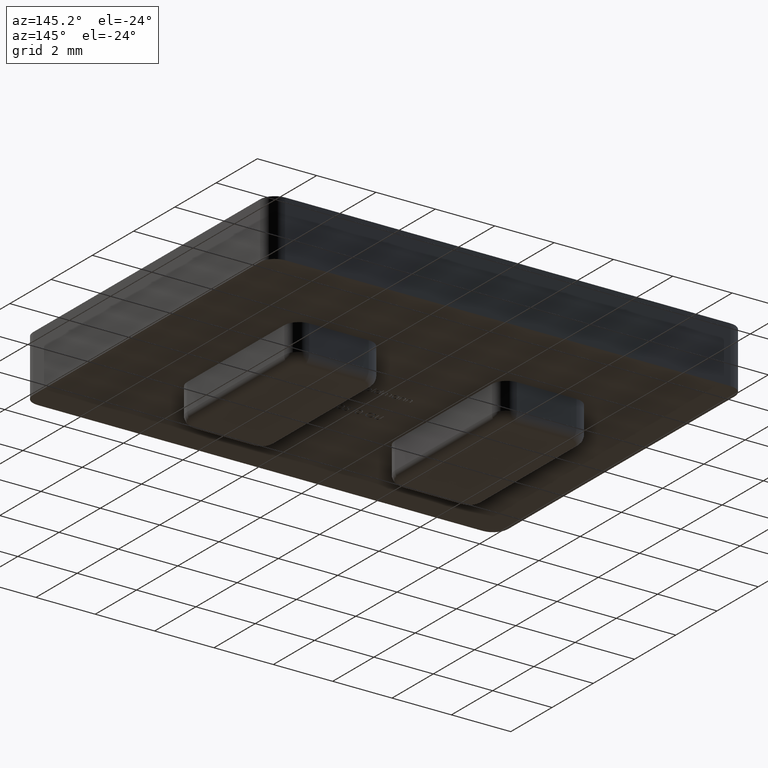
[diagram: clean part render]
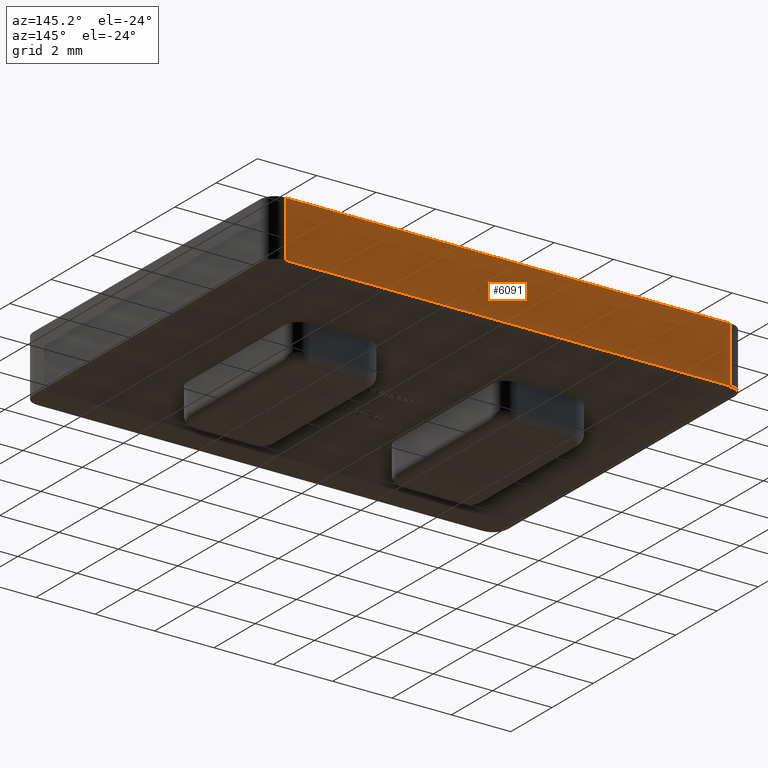
[diagram: same view with one face highlighted and labeled with its STEP entity id]
A machine part, auxiliary view. The second image highlights one B-rep face of the part: STEP entity #6091.
In plain terms, the highlighted planar face has unit normal (0, -1, 0).
Its self-contained STEP definition (entity closure, byte-faithful):
#550 = DIRECTION ( 'NONE',  ( 0.0000000000000000000, -0.0000000000000000000, -1.000000000000000000 ) ) ;
#810 = EDGE_CURVE ( 'NONE', #1571, #3043, #2233, .T. ) ;
#1466 = CARTESIAN_POINT ( 'NONE',  ( -7.999999999999998200, 6.000000000000000000, 1.899999999999999900 ) ) ;
#1571 = VERTEX_POINT ( 'NONE', #9528 ) ;
#1662 = DIRECTION ( 'NONE',  ( 0.0000000000000000000, -1.000000000000000000, 0.0000000000000000000 ) ) ;
#1802 = CARTESIAN_POINT ( 'NONE',  ( -7.499999999999999100, 6.000000000000000000, 0.0000000000000000000 ) ) ;
#2233 = LINE ( 'NONE', #9423, #3239 ) ;
#3043 = VERTEX_POINT ( 'NONE', #8575 ) ;
#3239 = VECTOR ( 'NONE', #10489, 1000.000000000000000 ) ;
#3357 = LINE ( 'NONE', #12598, #7215 ) ;
#4043 = FACE_OUTER_BOUND ( 'NONE', #8819, .T. ) ;
#4849 = PLANE ( 'NONE',  #8089 ) ;
#5115 = EDGE_CURVE ( 'NONE', #3043, #12923, #12681, .T. ) ;
#5861 = DIRECTION ( 'NONE',  ( -1.000000000000000000, -0.0000000000000000000, -0.0000000000000000000 ) ) ;
#6091 = ADVANCED_FACE ( 'NONE', ( #4043 ), #4849, .F. ) ;
#6316 = ORIENTED_EDGE ( 'NONE', *, *, #810, .T. ) ;
#7140 = CARTESIAN_POINT ( 'NONE',  ( -7.999999999999998200, 6.000000000000000000, 1.899999999999999900 ) ) ;
#7215 = VECTOR ( 'NONE', #11603, 1000.000000000000000 ) ;
#7604 = DIRECTION ( 'NONE',  ( -1.000000000000000000, -0.0000000000000000000, -0.0000000000000000000 ) ) ;
#8023 = ORIENTED_EDGE ( 'NONE', *, *, #5115, .T. ) ;
#8089 = AXIS2_PLACEMENT_3D ( 'NONE', #7140, #1662, #550 ) ;
#8173 = ORIENTED_EDGE ( 'NONE', *, *, #10657, .F. ) ;
#8575 = CARTESIAN_POINT ( 'NONE',  ( 7.500000000000001800, 6.000000000000000000, 0.0000000000000000000 ) ) ;
#8745 = CARTESIAN_POINT ( 'NONE',  ( -7.999999999999998200, 6.000000000000000000, 0.0000000000000000000 ) ) ;
#8814 = EDGE_CURVE ( 'NONE', #12923, #12653, #3357, .T. ) ;
#8819 = EDGE_LOOP ( 'NONE', ( #8023, #9263, #8173, #6316 ) ) ;
#9018 = VECTOR ( 'NONE', #5861, 1000.000000000000000 ) ;
#9263 = ORIENTED_EDGE ( 'NONE', *, *, #8814, .T. ) ;
#9423 = CARTESIAN_POINT ( 'NONE',  ( 7.500000000000001800, 6.000000000000000000, 1.899999999999999900 ) ) ;
#9528 = CARTESIAN_POINT ( 'NONE',  ( 7.500000000000001800, 6.000000000000000000, 1.899999999999999900 ) ) ;
#9960 = CARTESIAN_POINT ( 'NONE',  ( -7.499999999999999100, 6.000000000000000000, 1.899999999999999900 ) ) ;
#10489 = DIRECTION ( 'NONE',  ( 0.0000000000000000000, 0.0000000000000000000, -1.000000000000000000 ) ) ;
#10657 = EDGE_CURVE ( 'NONE', #1571, #12653, #11917, .T. ) ;
#11603 = DIRECTION ( 'NONE',  ( -0.0000000000000000000, -0.0000000000000000000, 1.000000000000000000 ) ) ;
#11917 = LINE ( 'NONE', #1466, #9018 ) ;
#12598 = CARTESIAN_POINT ( 'NONE',  ( -7.499999999999999100, 6.000000000000000000, 1.899999999999999900 ) ) ;
#12653 = VERTEX_POINT ( 'NONE', #9960 ) ;
#12681 = LINE ( 'NONE', #8745, #13179 ) ;
#12923 = VERTEX_POINT ( 'NONE', #1802 ) ;
#13179 = VECTOR ( 'NONE', #7604, 1000.000000000000000 ) ;